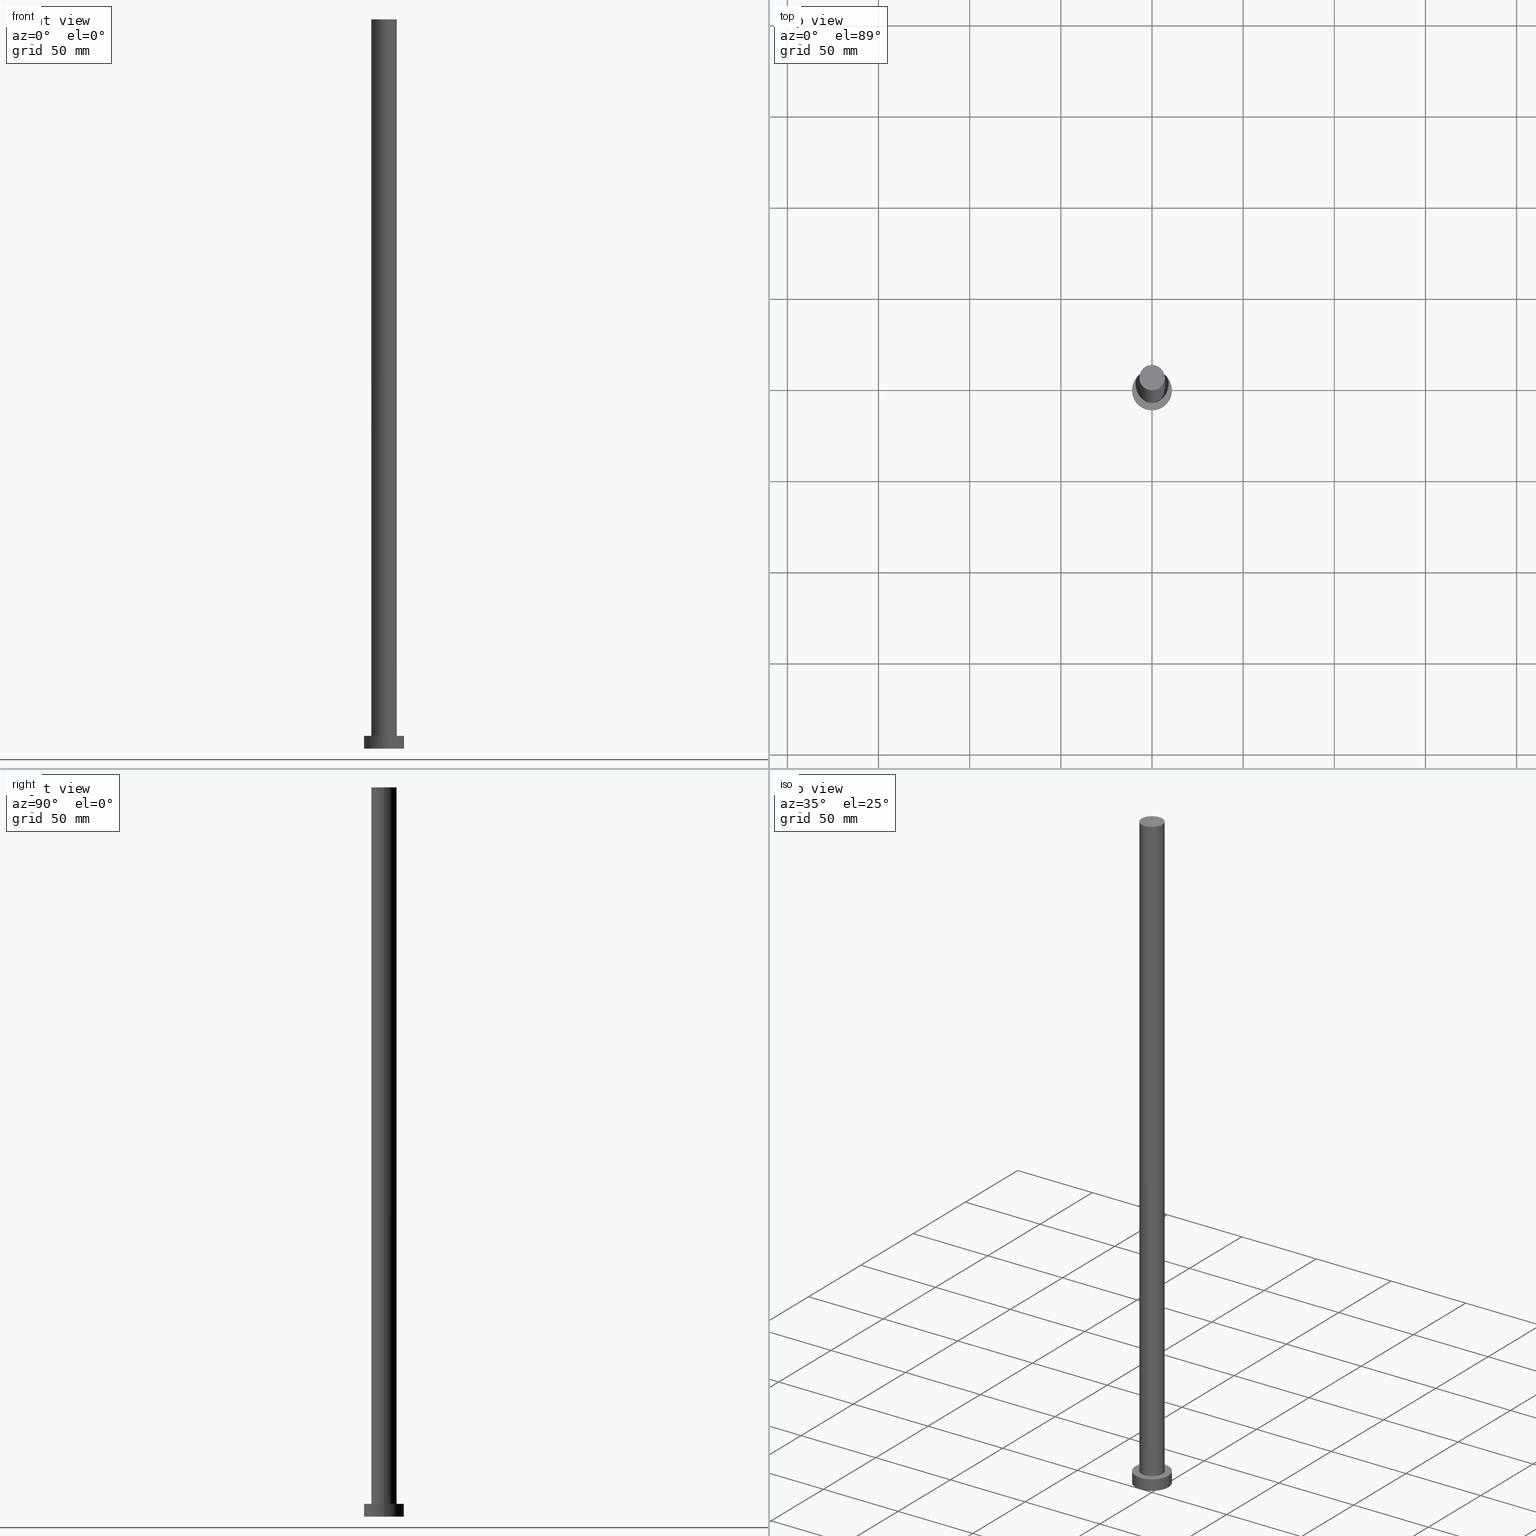
[diagram: canonical four-view strip — front | top / right | iso, engineering-drawing reading convention]
A machine part, canonical four-view strip (front | top / right | iso — engineering-drawing reading convention). The complete STEP part file that produces these views, byte-faithful:
ISO-10303-21;
HEADER;
FILE_DESCRIPTION (( 'STEP AP203' ),
    '1' );
FILE_NAME ('dd84.STEP',
    '2023-02-13T10:35:14',
    ( '' ),
    ( '' ),
    'SwSTEP 2.0',
    'SolidWorks 2019',
    '' );
FILE_SCHEMA (( 'CONFIG_CONTROL_DESIGN' ));
ENDSEC;

DATA;
#1 = UNCERTAINTY_MEASURE_WITH_UNIT (LENGTH_MEASURE( 1.000000000000000082E-05 ), #109, 'distance_accuracy_value', 'NONE');
#2 = DIRECTION ( 'NONE',  ( 1.000000000000000000, 0.000000000000000000, 0.000000000000000000 ) ) ;
#3 = PERSON_AND_ORGANIZATION ( #207, #217 ) ;
#4 = EDGE_LOOP ( 'NONE', ( #176, #30 ) ) ;
#5 = AXIS2_PLACEMENT_3D ( 'NONE', #69, #106, #70 ) ;
#6 = ORIENTED_EDGE ( 'NONE', *, *, #229, .F. ) ;
#7 = AXIS2_PLACEMENT_3D ( 'NONE', #18, #90, #253 ) ;
#8 = DIRECTION ( 'NONE',  ( 0.000000000000000000, 0.000000000000000000, 1.000000000000000000 ) ) ;
#9 = CARTESIAN_POINT ( 'NONE',  ( 11.00000000000000000, 1.347111479062088405E-15, 7.000000000000000000 ) ) ;
#10 = DIRECTION ( 'NONE',  ( 1.000000000000000000, 0.000000000000000000, 0.000000000000000000 ) ) ;
#11 = APPROVAL ( #136, 'NEUR�EN�' ) ;
#12 = CARTESIAN_POINT ( 'NONE',  ( 0.000000000000000000, 0.000000000000000000, 0.000000000000000000 ) ) ;
#13 = CARTESIAN_POINT ( 'NONE',  ( 0.000000000000000000, 0.000000000000000000, 7.000000000000000000 ) ) ;
#14 = AXIS2_PLACEMENT_3D ( 'NONE', #202, #8, #43 ) ;
#15 = APPROVAL_PERSON_ORGANIZATION ( #112, #11, #173 ) ;
#16 = DIRECTION ( 'NONE',  ( -0.000000000000000000, -0.000000000000000000, -1.000000000000000000 ) ) ;
#17 = CC_DESIGN_PERSON_AND_ORGANIZATION_ASSIGNMENT ( #57, #130, ( #144 ) ) ;
#18 = CARTESIAN_POINT ( 'NONE',  ( 0.000000000000000000, 0.000000000000000000, 7.000000000000000000 ) ) ;
#19 = DATE_AND_TIME ( #23, #171 ) ;
#20 = CALENDAR_DATE ( 2023, 13, 2 ) ;
#21 = CALENDAR_DATE ( 2023, 13, 2 ) ;
#22 = COORDINATED_UNIVERSAL_TIME_OFFSET ( 1, 0, .AHEAD. ) ;
#23 = CALENDAR_DATE ( 2023, 13, 2 ) ;
#24 = EDGE_LOOP ( 'NONE', ( #101, #196, #45, #137 ) ) ;
#25 = EDGE_CURVE ( 'NONE', #83, #80, #254, .T. ) ;
#26 = CIRCLE ( 'NONE', #199, 11.00000000000000000 ) ;
#27 = ORIENTED_EDGE ( 'NONE', *, *, #25, .F. ) ;
#28 = VERTEX_POINT ( 'NONE', #220 ) ;
#29 = FACE_OUTER_BOUND ( 'NONE', #118, .T. ) ;
#30 = ORIENTED_EDGE ( 'NONE', *, *, #44, .T. ) ;
#31 = CARTESIAN_POINT ( 'NONE',  ( 11.00000000000000000, 1.347111479062088405E-15, 7.000000000000000000 ) ) ;
#32 = DIRECTION ( 'NONE',  ( 1.000000000000000000, 0.000000000000000000, 0.000000000000000000 ) ) ;
#33 = FACE_OUTER_BOUND ( 'NONE', #242, .T. ) ;
#34 = FACE_OUTER_BOUND ( 'NONE', #240, .T. ) ;
#35 = DIRECTION ( 'NONE',  ( 0.000000000000000000, 0.000000000000000000, 1.000000000000000000 ) ) ;
#36 = COORDINATED_UNIVERSAL_TIME_OFFSET ( 1, 0, .AHEAD. ) ;
#37 = AXIS2_PLACEMENT_3D ( 'NONE', #167, #149, #84 ) ;
#38 = DATE_TIME_ROLE ( 'classification_date' ) ;
#39 = DIRECTION ( 'NONE',  ( -0.000000000000000000, -0.000000000000000000, -1.000000000000000000 ) ) ;
#40 = APPROVAL ( #215, 'NEUR�EN�' ) ;
#41 = AXIS2_PLACEMENT_3D ( 'NONE', #166, #123, #224 ) ;
#42 = ORIENTED_EDGE ( 'NONE', *, *, #68, .F. ) ;
#43 = DIRECTION ( 'NONE',  ( 1.000000000000000000, 0.000000000000000000, 0.000000000000000000 ) ) ;
#44 = EDGE_CURVE ( 'NONE', #140, #180, #115, .T. ) ;
#45 = ORIENTED_EDGE ( 'NONE', *, *, #77, .T. ) ;
#46 = DIRECTION ( 'NONE',  ( -0.000000000000000000, -0.000000000000000000, -1.000000000000000000 ) ) ;
#47 = ORIENTED_EDGE ( 'NONE', *, *, #148, .T. ) ;
#48 = DIRECTION ( 'NONE',  ( 0.000000000000000000, 0.000000000000000000, 1.000000000000000000 ) ) ;
#49 = DATE_AND_TIME ( #174, #72 ) ;
#50 = LINE ( 'NONE', #231, #157 ) ;
#51 = DIRECTION ( 'NONE',  ( 1.000000000000000000, 0.000000000000000000, 0.000000000000000000 ) ) ;
#52 = DIRECTION ( 'NONE',  ( -1.000000000000000000, 0.000000000000000000, 0.000000000000000000 ) ) ;
#53 = AXIS2_PLACEMENT_3D ( 'NONE', #104, #248, #183 ) ;
#54 = PERSON_AND_ORGANIZATION ( #207, #217 ) ;
#55 = APPROVAL_DATE_TIME ( #169, #249 ) ;
#56 = CIRCLE ( 'NONE', #5, 7.000000000000000888 ) ;
#57 = PERSON_AND_ORGANIZATION ( #207, #217 ) ;
#58 = CC_DESIGN_PERSON_AND_ORGANIZATION_ASSIGNMENT ( #3, #73, ( #193 ) ) ;
#59 = VERTEX_POINT ( 'NONE', #62 ) ;
#60 = EDGE_LOOP ( 'NONE', ( #42, #97, #139, #244 ) ) ;
#61 = SHAPE_DEFINITION_REPRESENTATION ( #74, #237 ) ;
#62 = CARTESIAN_POINT ( 'NONE',  ( 7.000000000000000888, 8.572527594031474176E-16, 7.000000000000000000 ) ) ;
#63 = APPROVAL_PERSON_ORGANIZATION ( #134, #40, #194 ) ;
#64 = CARTESIAN_POINT ( 'NONE',  ( -11.00000000000000000, 0.000000000000000000, 0.000000000000000000 ) ) ;
#65 = FACE_OUTER_BOUND ( 'NONE', #60, .T. ) ;
#66 = PLANE ( 'NONE',  #67 ) ;
#67 = AXIS2_PLACEMENT_3D ( 'NONE', #121, #182, #228 ) ;
#68 = EDGE_CURVE ( 'NONE', #138, #83, #198, .T. ) ;
#69 = CARTESIAN_POINT ( 'NONE',  ( 0.000000000000000000, 0.000000000000000000, 400.0000000000000000 ) ) ;
#70 = DIRECTION ( 'NONE',  ( 1.000000000000000000, 0.000000000000000000, 0.000000000000000000 ) ) ;
#71 = CYLINDRICAL_SURFACE ( 'NONE', #53, 11.00000000000000000 ) ;
#72 = LOCAL_TIME ( 11, 35, 14.00000000000000000, #22 ) ;
#73 = PERSON_AND_ORGANIZATION_ROLE ( 'design_owner' ) ;
#74 = PRODUCT_DEFINITION_SHAPE ( 'NONE', 'NONE',  #232 ) ;
#75 = AXIS2_PLACEMENT_3D ( 'NONE', #13, #86, #10 ) ;
#76 = PERSON_AND_ORGANIZATION ( #207, #217 ) ;
#77 = EDGE_CURVE ( 'NONE', #180, #204, #160, .T. ) ;
#78 = AXIS2_PLACEMENT_3D ( 'NONE', #206, #35, #124 ) ;
#79 = VECTOR ( 'NONE', #39, 1000.000000000000000 ) ;
#80 = VERTEX_POINT ( 'NONE', #64 ) ;
#81 = DIRECTION ( 'NONE',  ( -0.000000000000000000, -0.000000000000000000, -1.000000000000000000 ) ) ;
#82 = CC_DESIGN_DATE_AND_TIME_ASSIGNMENT ( #214, #38, ( #200 ) ) ;
#83 = VERTEX_POINT ( 'NONE', #117 ) ;
#84 = DIRECTION ( 'NONE',  ( 1.000000000000000000, 0.000000000000000000, 0.000000000000000000 ) ) ;
#85 = CARTESIAN_POINT ( 'NONE',  ( -7.000000000000000888, 0.000000000000000000, 7.000000000000000000 ) ) ;
#86 = DIRECTION ( 'NONE',  ( 0.000000000000000000, 0.000000000000000000, 1.000000000000000000 ) ) ;
#87 = VECTOR ( 'NONE', #81, 1000.000000000000000 ) ;
#88 = ADVANCED_FACE ( 'NONE', ( #29 ), #168, .T. ) ;
#89 = PLANE ( 'NONE',  #78 ) ;
#90 = DIRECTION ( 'NONE',  ( 0.000000000000000000, 0.000000000000000000, 1.000000000000000000 ) ) ;
#91 = APPROVAL_STATUS ( 'not_yet_approved' ) ;
#92 = APPROVAL_PERSON_ORGANIZATION ( #76, #249, #96 ) ;
#93 = ADVANCED_FACE ( 'NONE', ( #208 ), #89, .T. ) ;
#94 = SECURITY_CLASSIFICATION_LEVEL ( 'unclassified' ) ;
#95 = DATE_TIME_ROLE ( 'creation_date' ) ;
#96 = APPROVAL_ROLE ( '' ) ;
#97 = ORIENTED_EDGE ( 'NONE', *, *, #222, .F. ) ;
#98 = AXIS2_PLACEMENT_3D ( 'NONE', #172, #216, #2 ) ;
#99 = CARTESIAN_POINT ( 'NONE',  ( 0.000000000000000000, 0.000000000000000000, 0.000000000000000000 ) ) ;
#100 = CC_DESIGN_DATE_AND_TIME_ASSIGNMENT ( #19, #95, ( #232 ) ) ;
#101 = ORIENTED_EDGE ( 'NONE', *, *, #125, .F. ) ;
#102 = ORIENTED_EDGE ( 'NONE', *, *, #197, .T. ) ;
#103 = LOCAL_TIME ( 11, 35, 14.00000000000000000, #36 ) ;
#104 = CARTESIAN_POINT ( 'NONE',  ( 0.000000000000000000, 0.000000000000000000, 7.000000000000000000 ) ) ;
#105 = LINE ( 'NONE', #184, #79 ) ;
#106 = DIRECTION ( 'NONE',  ( 0.000000000000000000, 0.000000000000000000, 1.000000000000000000 ) ) ;
#107 = CC_DESIGN_SECURITY_CLASSIFICATION ( #200, ( #144 ) ) ;
#108 = CYLINDRICAL_SURFACE ( 'NONE', #126, 7.000000000000000888 ) ;
#109 =( LENGTH_UNIT ( ) NAMED_UNIT ( * ) SI_UNIT ( .MILLI., .METRE. ) );
#110 = CLOSED_SHELL ( 'NONE', ( #88, #203, #185, #142, #177, #186, #93 ) ) ;
#111 = DESIGN_CONTEXT ( 'detailed design', #122, 'design' ) ;
#112 = PERSON_AND_ORGANIZATION ( #207, #217 ) ;
#113 = ORIENTED_EDGE ( 'NONE', *, *, #148, .F. ) ;
#114 = ORIENTED_EDGE ( 'NONE', *, *, #77, .F. ) ;
#115 = CIRCLE ( 'NONE', #14, 7.000000000000000888 ) ;
#116 = ORIENTED_EDGE ( 'NONE', *, *, #222, .T. ) ;
#117 = CARTESIAN_POINT ( 'NONE',  ( 11.00000000000000000, 1.347111479062088405E-15, 0.000000000000000000 ) ) ;
#118 = EDGE_LOOP ( 'NONE', ( #243, #178, #102, #114 ) ) ;
#119 = FACE_OUTER_BOUND ( 'NONE', #24, .T. ) ;
#120 = CC_DESIGN_APPROVAL ( #249, ( #144 ) ) ;
#121 = CARTESIAN_POINT ( 'NONE',  ( 0.000000000000000000, 0.000000000000000000, 7.000000000000000000 ) ) ;
#122 = APPLICATION_CONTEXT ( 'configuration controlled 3d designs of mechanical parts and assemblies' ) ;
#123 = DIRECTION ( 'NONE',  ( -0.000000000000000000, -0.000000000000000000, -1.000000000000000000 ) ) ;
#124 = DIRECTION ( 'NONE',  ( 1.000000000000000000, 0.000000000000000000, -0.000000000000000000 ) ) ;
#125 = EDGE_CURVE ( 'NONE', #140, #59, #50, .T. ) ;
#126 = AXIS2_PLACEMENT_3D ( 'NONE', #187, #188, #164 ) ;
#127 = CARTESIAN_POINT ( 'NONE',  ( 0.000000000000000000, 0.000000000000000000, 7.000000000000000000 ) ) ;
#128 = MANIFOLD_SOLID_BREP ( 'P�idat vysunut�m3', #110 ) ;
#129 = EDGE_CURVE ( 'NONE', #180, #140, #56, .T. ) ;
#130 = PERSON_AND_ORGANIZATION_ROLE ( 'design_supplier' ) ;
#131 = PERSON_AND_ORGANIZATION ( #207, #217 ) ;
#132 = AXIS2_PLACEMENT_3D ( 'NONE', #99, #179, #159 ) ;
#133 = EDGE_CURVE ( 'NONE', #80, #83, #143, .T. ) ;
#134 = PERSON_AND_ORGANIZATION ( #207, #217 ) ;
#135 =( NAMED_UNIT ( * ) SI_UNIT ( $, .STERADIAN. ) SOLID_ANGLE_UNIT ( ) );
#136 = APPROVAL_STATUS ( 'not_yet_approved' ) ;
#137 = ORIENTED_EDGE ( 'NONE', *, *, #162, .T. ) ;
#138 = VERTEX_POINT ( 'NONE', #31 ) ;
#139 = ORIENTED_EDGE ( 'NONE', *, *, #229, .T. ) ;
#140 = VERTEX_POINT ( 'NONE', #150 ) ;
#141 = CYLINDRICAL_SURFACE ( 'NONE', #41, 11.00000000000000000 ) ;
#142 = ADVANCED_FACE ( 'NONE', ( #211, #251 ), #66, .T. ) ;
#143 = CIRCLE ( 'NONE', #37, 11.00000000000000000 ) ;
#144 = PRODUCT_DEFINITION_FORMATION_WITH_SPECIFIED_SOURCE ( 'LIBOVOLN�', '', #193, .NOT_KNOWN. ) ;
#145 = CARTESIAN_POINT ( 'NONE',  ( 0.000000000000000000, 0.000000000000000000, 7.000000000000000000 ) ) ;
#146 = CIRCLE ( 'NONE', #7, 7.000000000000000888 ) ;
#147 = CARTESIAN_POINT ( 'NONE',  ( -7.000000000000000888, 0.000000000000000000, 400.0000000000000000 ) ) ;
#148 = EDGE_CURVE ( 'NONE', #138, #28, #26, .T. ) ;
#149 = DIRECTION ( 'NONE',  ( 0.000000000000000000, 0.000000000000000000, 1.000000000000000000 ) ) ;
#150 = CARTESIAN_POINT ( 'NONE',  ( 7.000000000000000888, 8.572527594031474176E-16, 400.0000000000000000 ) ) ;
#151 =( GEOMETRIC_REPRESENTATION_CONTEXT ( 3 ) GLOBAL_UNCERTAINTY_ASSIGNED_CONTEXT ( ( #1 ) ) GLOBAL_UNIT_ASSIGNED_CONTEXT ( ( #109, #238, #135 ) ) REPRESENTATION_CONTEXT ( 'NONE', 'WORKASPACE' ) );
#152 = APPLICATION_PROTOCOL_DEFINITION ( 'international standard', 'config_control_design', 1994, #209 ) ;
#153 = CC_DESIGN_PERSON_AND_ORGANIZATION_ASSIGNMENT ( #131, #255, ( #200 ) ) ;
#154 = CC_DESIGN_APPROVAL ( #40, ( #200 ) ) ;
#155 = COORDINATED_UNIVERSAL_TIME_OFFSET ( 1, 0, .AHEAD. ) ;
#156 = ORIENTED_EDGE ( 'NONE', *, *, #25, .T. ) ;
#157 = VECTOR ( 'NONE', #205, 1000.000000000000000 ) ;
#158 = EDGE_LOOP ( 'NONE', ( #116, #47 ) ) ;
#159 = DIRECTION ( 'NONE',  ( 1.000000000000000000, 0.000000000000000000, 0.000000000000000000 ) ) ;
#160 = LINE ( 'NONE', #223, #170 ) ;
#161 = ORIENTED_EDGE ( 'NONE', *, *, #162, .F. ) ;
#162 = EDGE_CURVE ( 'NONE', #204, #59, #235, .T. ) ;
#163 = DIRECTION ( 'NONE',  ( 0.000000000000000000, 0.000000000000000000, 1.000000000000000000 ) ) ;
#164 = DIRECTION ( 'NONE',  ( -1.000000000000000000, 0.000000000000000000, 0.000000000000000000 ) ) ;
#165 = APPROVAL_DATE_TIME ( #49, #40 ) ;
#166 = CARTESIAN_POINT ( 'NONE',  ( 0.000000000000000000, 0.000000000000000000, 7.000000000000000000 ) ) ;
#167 = CARTESIAN_POINT ( 'NONE',  ( 0.000000000000000000, 0.000000000000000000, 0.000000000000000000 ) ) ;
#168 = CYLINDRICAL_SURFACE ( 'NONE', #225, 7.000000000000000888 ) ;
#169 = DATE_AND_TIME ( #21, #181 ) ;
#170 = VECTOR ( 'NONE', #46, 1000.000000000000000 ) ;
#171 = LOCAL_TIME ( 11, 35, 14.00000000000000000, #155 ) ;
#172 = CARTESIAN_POINT ( 'NONE',  ( 0.000000000000000000, 0.000000000000000000, 0.000000000000000000 ) ) ;
#173 = APPROVAL_ROLE ( '' ) ;
#174 = CALENDAR_DATE ( 2023, 13, 2 ) ;
#175 = COORDINATED_UNIVERSAL_TIME_OFFSET ( 1, 0, .AHEAD. ) ;
#176 = ORIENTED_EDGE ( 'NONE', *, *, #129, .T. ) ;
#177 = ADVANCED_FACE ( 'NONE', ( #34 ), #250, .F. ) ;
#178 = ORIENTED_EDGE ( 'NONE', *, *, #125, .T. ) ;
#179 = DIRECTION ( 'NONE',  ( 0.000000000000000000, 0.000000000000000000, 1.000000000000000000 ) ) ;
#180 = VERTEX_POINT ( 'NONE', #147 ) ;
#181 = LOCAL_TIME ( 11, 35, 14.00000000000000000, #175 ) ;
#182 = DIRECTION ( 'NONE',  ( 0.000000000000000000, 0.000000000000000000, 1.000000000000000000 ) ) ;
#183 = DIRECTION ( 'NONE',  ( -1.000000000000000000, 0.000000000000000000, 0.000000000000000000 ) ) ;
#184 = CARTESIAN_POINT ( 'NONE',  ( -11.00000000000000000, 0.000000000000000000, 7.000000000000000000 ) ) ;
#185 = ADVANCED_FACE ( 'NONE', ( #65 ), #141, .T. ) ;
#186 = ADVANCED_FACE ( 'NONE', ( #119 ), #108, .T. ) ;
#187 = CARTESIAN_POINT ( 'NONE',  ( 0.000000000000000000, 0.000000000000000000, 400.0000000000000000 ) ) ;
#188 = DIRECTION ( 'NONE',  ( -0.000000000000000000, -0.000000000000000000, -1.000000000000000000 ) ) ;
#189 = MECHANICAL_CONTEXT ( 'NONE', #209, 'mechanical' ) ;
#190 = DATE_AND_TIME ( #239, #245 ) ;
#191 = CC_DESIGN_APPROVAL ( #11, ( #232 ) ) ;
#192 = PERSON_AND_ORGANIZATION_ROLE ( 'creator' ) ;
#193 = PRODUCT ( 'dd84', 'dd84', '', ( #189 ) ) ;
#194 = APPROVAL_ROLE ( '' ) ;
#195 = APPROVAL_DATE_TIME ( #190, #11 ) ;
#196 = ORIENTED_EDGE ( 'NONE', *, *, #129, .F. ) ;
#197 = EDGE_CURVE ( 'NONE', #59, #204, #146, .T. ) ;
#198 = LINE ( 'NONE', #9, #87 ) ;
#199 = AXIS2_PLACEMENT_3D ( 'NONE', #127, #48, #51 ) ;
#200 = SECURITY_CLASSIFICATION ( '', '', #94 ) ;
#201 = EDGE_LOOP ( 'NONE', ( #161, #221 ) ) ;
#202 = CARTESIAN_POINT ( 'NONE',  ( 0.000000000000000000, 0.000000000000000000, 400.0000000000000000 ) ) ;
#203 = ADVANCED_FACE ( 'NONE', ( #33 ), #71, .T. ) ;
#204 = VERTEX_POINT ( 'NONE', #85 ) ;
#205 = DIRECTION ( 'NONE',  ( -0.000000000000000000, -0.000000000000000000, -1.000000000000000000 ) ) ;
#206 = CARTESIAN_POINT ( 'NONE',  ( 0.000000000000000000, 0.000000000000000000, 400.0000000000000000 ) ) ;
#207 = PERSON ( 'NEUR�EN�', 'NEUR�EN�', 'NEUR�EN�', ('NEUR�EN�'), ('NEUR�EN�'), ('NEUR�EN�') ) ;
#208 = FACE_OUTER_BOUND ( 'NONE', #4, .T. ) ;
#209 = APPLICATION_CONTEXT ( 'configuration controlled 3d designs of mechanical parts and assemblies' ) ;
#210 = CARTESIAN_POINT ( 'NONE',  ( 0.000000000000000000, 0.000000000000000000, 400.0000000000000000 ) ) ;
#211 = FACE_BOUND ( 'NONE', #201, .T. ) ;
#212 = CC_DESIGN_PERSON_AND_ORGANIZATION_ASSIGNMENT ( #213, #236, ( #144 ) ) ;
#213 = PERSON_AND_ORGANIZATION ( #207, #217 ) ;
#214 = DATE_AND_TIME ( #20, #103 ) ;
#215 = APPROVAL_STATUS ( 'not_yet_approved' ) ;
#216 = DIRECTION ( 'NONE',  ( 0.000000000000000000, 0.000000000000000000, 1.000000000000000000 ) ) ;
#217 = ORGANIZATION ( 'NEUR�EN�', 'NEUR�EN�', '' ) ;
#218 = ORIENTED_EDGE ( 'NONE', *, *, #133, .F. ) ;
#219 = CC_DESIGN_PERSON_AND_ORGANIZATION_ASSIGNMENT ( #54, #192, ( #232 ) ) ;
#220 = CARTESIAN_POINT ( 'NONE',  ( -11.00000000000000000, 0.000000000000000000, 7.000000000000000000 ) ) ;
#221 = ORIENTED_EDGE ( 'NONE', *, *, #197, .F. ) ;
#222 = EDGE_CURVE ( 'NONE', #28, #138, #241, .T. ) ;
#223 = CARTESIAN_POINT ( 'NONE',  ( -7.000000000000000888, 0.000000000000000000, 400.0000000000000000 ) ) ;
#224 = DIRECTION ( 'NONE',  ( -1.000000000000000000, 0.000000000000000000, 0.000000000000000000 ) ) ;
#225 = AXIS2_PLACEMENT_3D ( 'NONE', #210, #16, #52 ) ;
#226 = AXIS2_PLACEMENT_3D ( 'NONE', #12, #163, #247 ) ;
#227 = DIRECTION ( 'NONE',  ( 0.000000000000000000, 0.000000000000000000, 1.000000000000000000 ) ) ;
#228 = DIRECTION ( 'NONE',  ( 1.000000000000000000, 0.000000000000000000, -0.000000000000000000 ) ) ;
#229 = EDGE_CURVE ( 'NONE', #28, #80, #105, .T. ) ;
#230 = AXIS2_PLACEMENT_3D ( 'NONE', #145, #227, #32 ) ;
#231 = CARTESIAN_POINT ( 'NONE',  ( 7.000000000000000888, 8.572527594031474176E-16, 400.0000000000000000 ) ) ;
#232 = PRODUCT_DEFINITION ( 'NEZN�M�', '', #144, #111 ) ;
#233 = COORDINATED_UNIVERSAL_TIME_OFFSET ( 1, 0, .AHEAD. ) ;
#234 = APPLICATION_PROTOCOL_DEFINITION ( 'international standard', 'config_control_design', 1994, #122 ) ;
#235 = CIRCLE ( 'NONE', #75, 7.000000000000000888 ) ;
#236 = PERSON_AND_ORGANIZATION_ROLE ( 'creator' ) ;
#237 = ADVANCED_BREP_SHAPE_REPRESENTATION ( 'dd84', ( #128, #98 ), #151 ) ;
#238 =( NAMED_UNIT ( * ) PLANE_ANGLE_UNIT ( ) SI_UNIT ( $, .RADIAN. ) );
#239 = CALENDAR_DATE ( 2023, 13, 2 ) ;
#240 = EDGE_LOOP ( 'NONE', ( #218, #27 ) ) ;
#241 = CIRCLE ( 'NONE', #230, 11.00000000000000000 ) ;
#242 = EDGE_LOOP ( 'NONE', ( #113, #246, #156, #6 ) ) ;
#243 = ORIENTED_EDGE ( 'NONE', *, *, #44, .F. ) ;
#244 = ORIENTED_EDGE ( 'NONE', *, *, #133, .T. ) ;
#245 = LOCAL_TIME ( 11, 35, 14.00000000000000000, #233 ) ;
#246 = ORIENTED_EDGE ( 'NONE', *, *, #68, .T. ) ;
#247 = DIRECTION ( 'NONE',  ( 1.000000000000000000, 0.000000000000000000, -0.000000000000000000 ) ) ;
#248 = DIRECTION ( 'NONE',  ( -0.000000000000000000, -0.000000000000000000, -1.000000000000000000 ) ) ;
#249 = APPROVAL ( #91, 'NEUR�EN�' ) ;
#250 = PLANE ( 'NONE',  #226 ) ;
#251 = FACE_OUTER_BOUND ( 'NONE', #158, .T. ) ;
#252 = PRODUCT_RELATED_PRODUCT_CATEGORY ( 'detail', '', ( #193 ) ) ;
#253 = DIRECTION ( 'NONE',  ( 1.000000000000000000, 0.000000000000000000, 0.000000000000000000 ) ) ;
#254 = CIRCLE ( 'NONE', #132, 11.00000000000000000 ) ;
#255 = PERSON_AND_ORGANIZATION_ROLE ( 'classification_officer' ) ;
ENDSEC;
END-ISO-10303-21;
